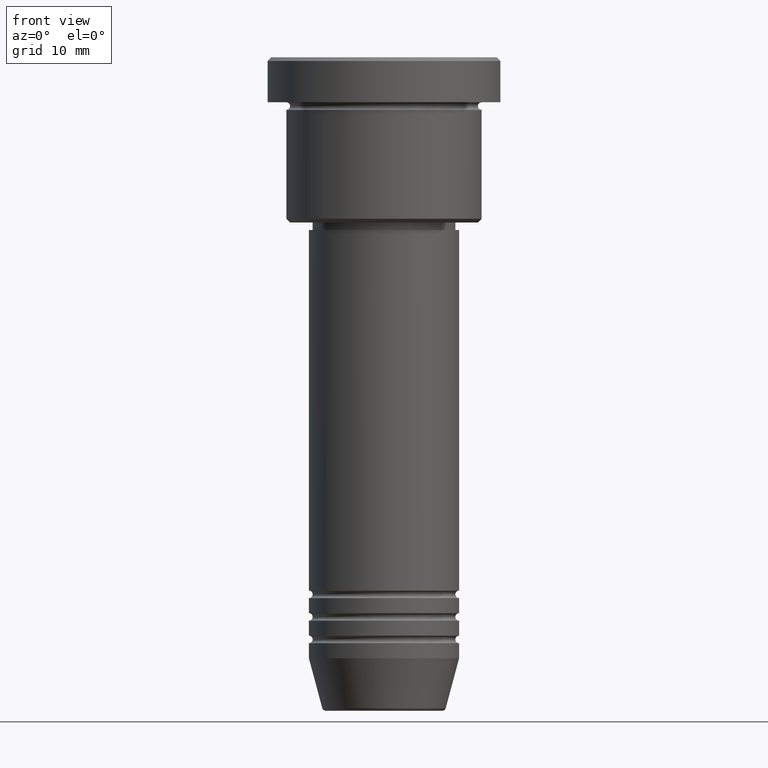
[diagram: clean part render]
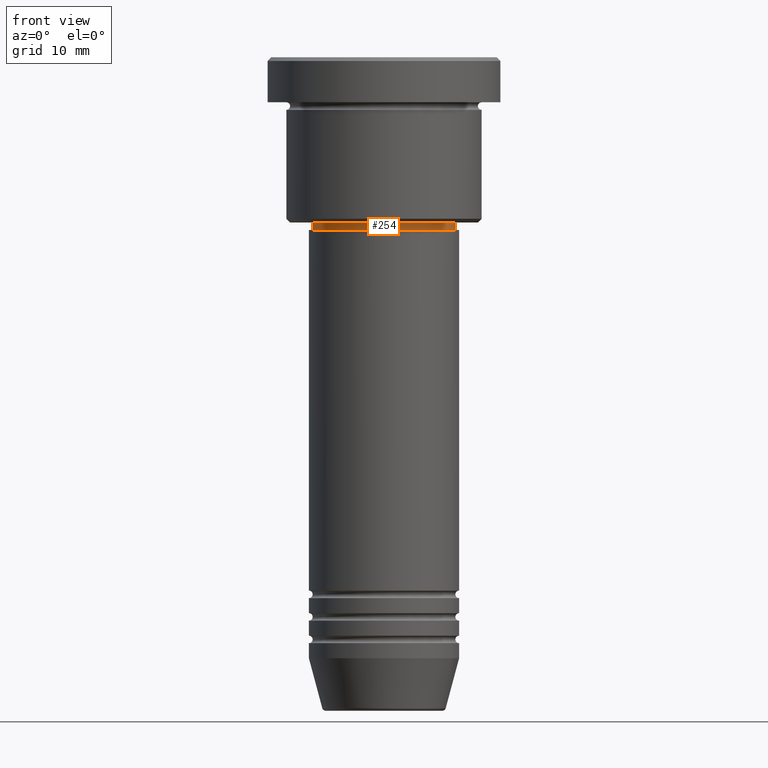
[diagram: same view with one face highlighted and labeled with its STEP entity id]
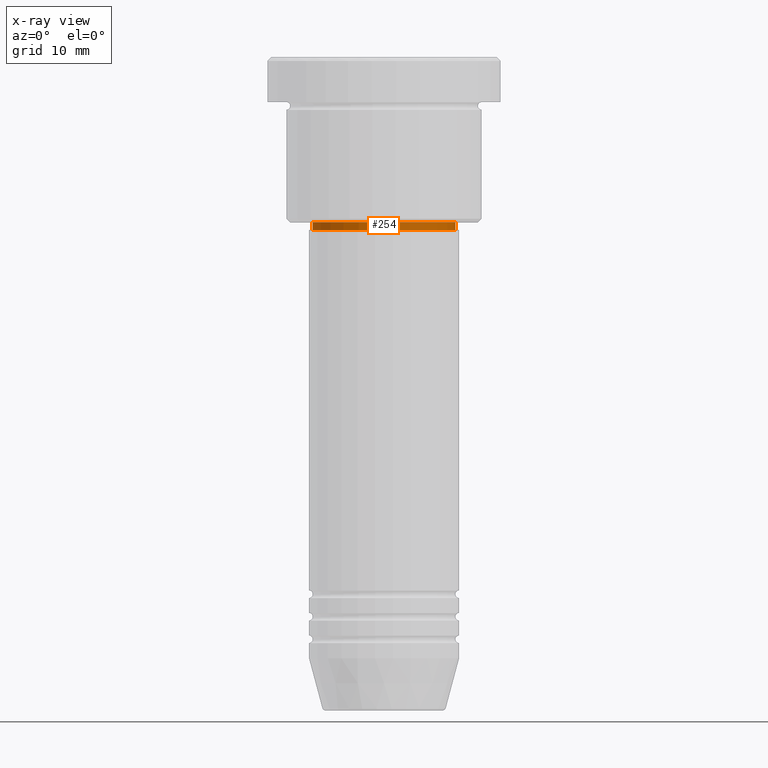
[diagram: x-ray of the same camera — body ghosted, the highlighted face saturated]
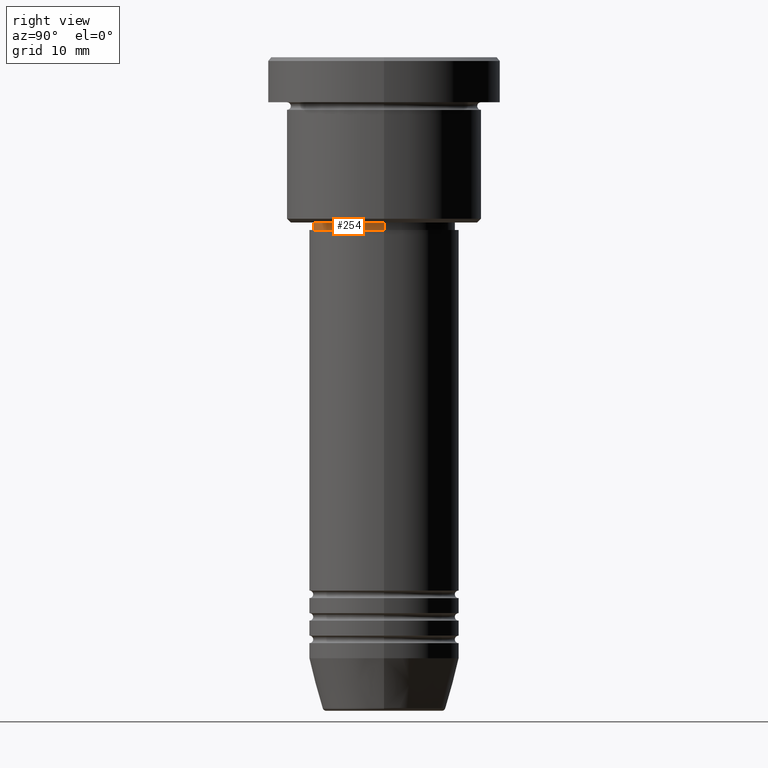
[diagram: same view with one face highlighted and labeled with its STEP entity id]
A machine part, front view. The second image highlights one B-rep face of the part: STEP entity #254.
The next image is the same camera in x-ray: the body ghosted, the highlighted face saturated — about 0% of this face is hidden behind the body in this view.
A second angle (right view) of the same face is appended — the face is thin or edge-on in the first view.
In plain terms, the highlighted cylindrical surface (partial cylindrical patch) has radius 9.5 mm, axis along (-0, -0, 1).
Its self-contained STEP definition (entity closure, byte-faithful):
#14 = DIRECTION ( 'NONE',  ( -0.000000000000000000, -0.000000000000000000, 1.000000000000000000 ) ) ;
#38 = CARTESIAN_POINT ( 'NONE',  ( 9.500000000000000000, 0.000000000000000000, -21.99999999999999645 ) ) ;
#49 = EDGE_CURVE ( 'NONE', #419, #1076, #575, .T. ) ;
#52 = VECTOR ( 'NONE', #1069, 1000.000000000000000 ) ;
#81 = CARTESIAN_POINT ( 'NONE',  ( 0.000000000000000000, 0.000000000000000000, 0.000000000000000000 ) ) ;
#120 = EDGE_CURVE ( 'NONE', #1076, #929, #312, .T. ) ;
#121 = VERTEX_POINT ( 'NONE', #1055 ) ;
#162 = ORIENTED_EDGE ( 'NONE', *, *, #1115, .T. ) ;
#254 = ADVANCED_FACE ( 'NONE', ( #450 ), #808, .T. ) ;
#297 = ORIENTED_EDGE ( 'NONE', *, *, #1008, .T. ) ;
#312 = CIRCLE ( 'NONE', #1156, 9.500000000000000000 ) ;
#371 = DIRECTION ( 'NONE',  ( 1.000000000000000000, 0.000000000000000000, 0.000000000000000000 ) ) ;
#419 = VERTEX_POINT ( 'NONE', #760 ) ;
#450 = FACE_OUTER_BOUND ( 'NONE', #881, .T. ) ;
#575 = LINE ( 'NONE', #947, #922 ) ;
#681 = CARTESIAN_POINT ( 'NONE',  ( 0.000000000000000000, 0.000000000000000000, -21.99999999999999645 ) ) ;
#695 = AXIS2_PLACEMENT_3D ( 'NONE', #802, #1016, #1011 ) ;
#745 = AXIS2_PLACEMENT_3D ( 'NONE', #81, #14, #371 ) ;
#760 = CARTESIAN_POINT ( 'NONE',  ( -9.500000000000000000, 1.163414459189985485E-15, -22.99999999999999289 ) ) ;
#782 = CARTESIAN_POINT ( 'NONE',  ( 9.500000000000000000, 0.000000000000000000, 0.000000000000000000 ) ) ;
#799 = DIRECTION ( 'NONE',  ( -0.000000000000000000, -0.000000000000000000, 1.000000000000000000 ) ) ;
#802 = CARTESIAN_POINT ( 'NONE',  ( 0.000000000000000000, 0.000000000000000000, -22.99999999999999289 ) ) ;
#808 = CYLINDRICAL_SURFACE ( 'NONE', #745, 9.500000000000000000 ) ;
#865 = DIRECTION ( 'NONE',  ( 1.000000000000000000, 0.000000000000000000, 0.000000000000000000 ) ) ;
#881 = EDGE_LOOP ( 'NONE', ( #1072, #162, #297, #1020 ) ) ;
#922 = VECTOR ( 'NONE', #1133, 1000.000000000000000 ) ;
#929 = VERTEX_POINT ( 'NONE', #38 ) ;
#947 = CARTESIAN_POINT ( 'NONE',  ( -9.500000000000000000, 1.163414459189985485E-15, 0.000000000000000000 ) ) ;
#968 = CIRCLE ( 'NONE', #695, 9.500000000000000000 ) ;
#1008 = EDGE_CURVE ( 'NONE', #121, #929, #1060, .T. ) ;
#1011 = DIRECTION ( 'NONE',  ( 1.000000000000000000, 0.000000000000000000, 0.000000000000000000 ) ) ;
#1016 = DIRECTION ( 'NONE',  ( -0.000000000000000000, -0.000000000000000000, 1.000000000000000000 ) ) ;
#1020 = ORIENTED_EDGE ( 'NONE', *, *, #120, .F. ) ;
#1055 = CARTESIAN_POINT ( 'NONE',  ( 9.500000000000000000, 0.000000000000000000, -22.99999999999999289 ) ) ;
#1060 = LINE ( 'NONE', #782, #52 ) ;
#1069 = DIRECTION ( 'NONE',  ( -0.000000000000000000, -0.000000000000000000, 1.000000000000000000 ) ) ;
#1072 = ORIENTED_EDGE ( 'NONE', *, *, #49, .F. ) ;
#1076 = VERTEX_POINT ( 'NONE', #1077 ) ;
#1077 = CARTESIAN_POINT ( 'NONE',  ( -9.500000000000000000, 1.163414459189985485E-15, -21.99999999999999645 ) ) ;
#1115 = EDGE_CURVE ( 'NONE', #419, #121, #968, .T. ) ;
#1133 = DIRECTION ( 'NONE',  ( -0.000000000000000000, -0.000000000000000000, 1.000000000000000000 ) ) ;
#1156 = AXIS2_PLACEMENT_3D ( 'NONE', #681, #799, #865 ) ;